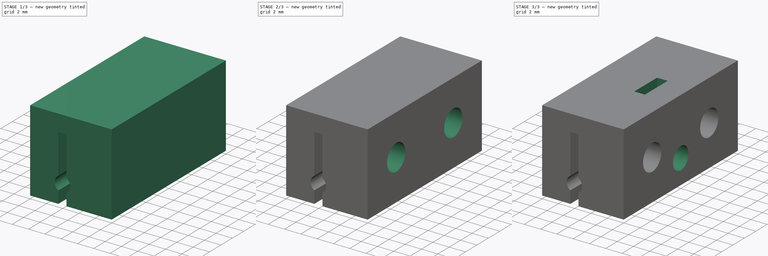
[diagram: build sequence overview — one tinted view per stage of 3, left to right]
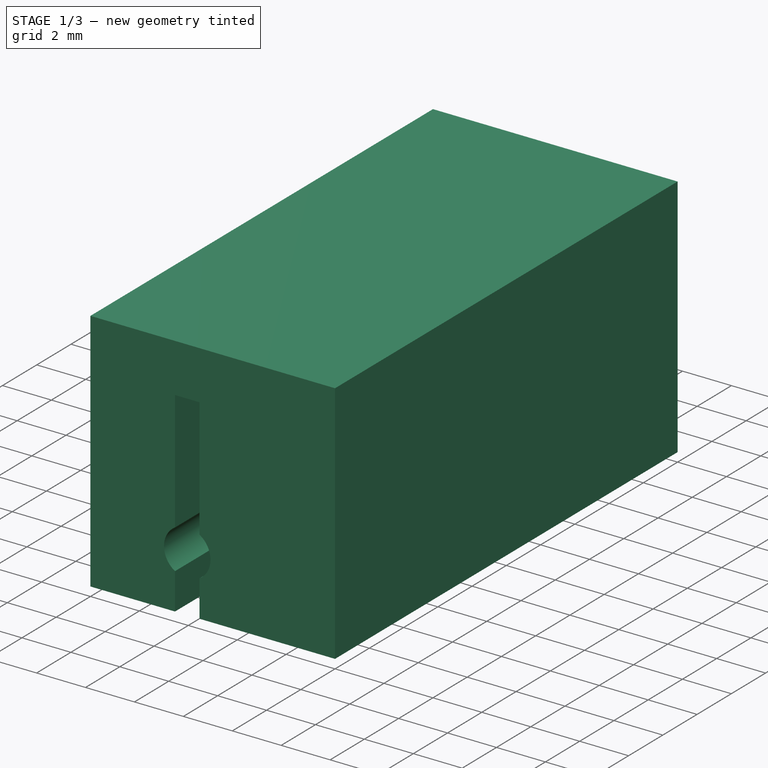
[diagram: stage 1 of 3 — iso view after this stage's code; geometry added in this stage tinted green]
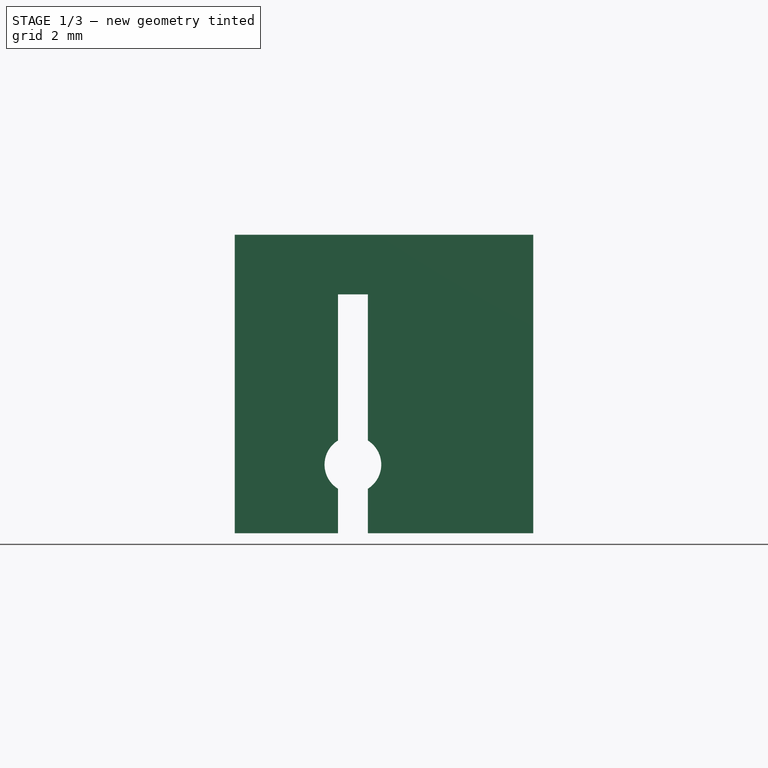
[diagram: stage 1 of 3 — front view after this stage's code; geometry added in this stage tinted green]
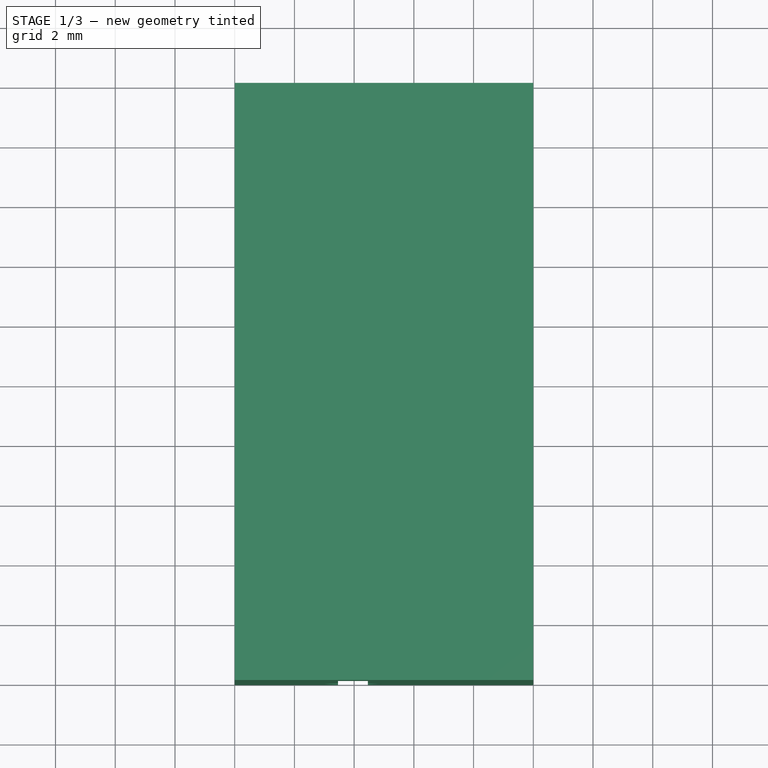
[diagram: stage 1 of 3 — top view after this stage's code; geometry added in this stage tinted green]
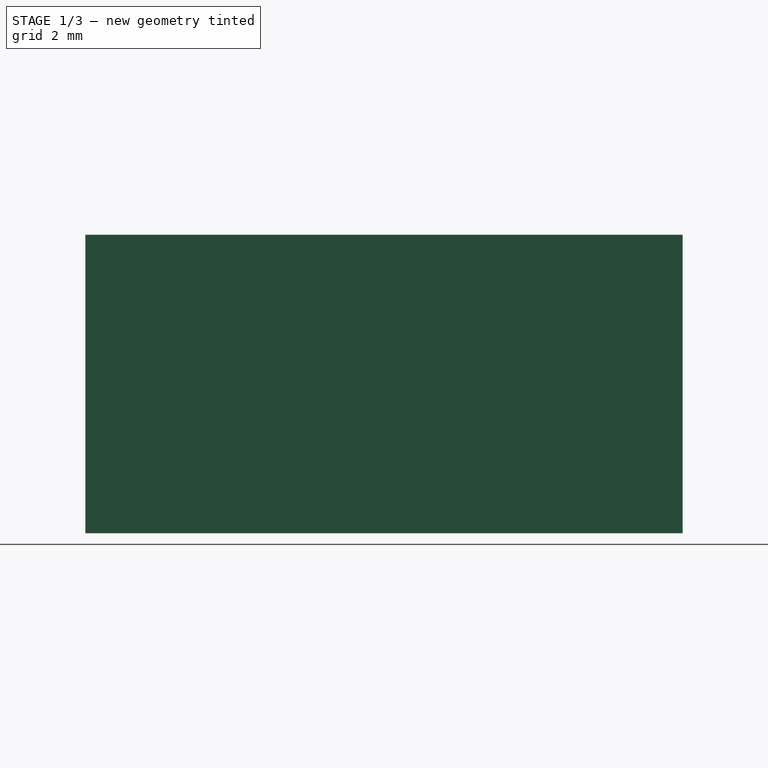
[diagram: stage 1 of 3 — right view after this stage's code; geometry added in this stage tinted green]
FCSTD DOCUMENT  (FreeCAD 0.16R6706 (Git))
Label: Cable Clamp
License: All rights reserved
LicenseURL: http://en.wikipedia.org/wiki/All_rights_reserved
objects: Sketcher::SketchObject×5, PartDesign::Pocket×5, Part::Box×1
note: 16 computed .brp shape members not serialized (recipe doc carries the construction recipe); baked Part::Feature solids carry a one-line shape summary decoded from their .brp

FEATURE [Part::Box] Box  label="Cube"
  Height = 10
  Length = 10
  Width = 20
FEATURE [Sketcher::SketchObject] Sketch
  Placement = pos=(0,0,0) rot=(1,0,0;1.5708rad)
  Support = -> Box [Face3]
  expr: Constraints[23] = 1.9 / 2
  sketch-geometry (10):
    g0: LineSegment StartX=3.4583 StartY=0 StartZ=0 EndX=3.4583 EndY=1.49223 EndZ=0
    g1: LineSegment StartX=3.4583 StartY=3.10777 StartZ=0 EndX=3.4583 EndY=8 EndZ=0
    g2: LineSegment StartX=3.4583 StartY=8 StartZ=0 EndX=4.45829 EndY=8 EndZ=0
    g3: LineSegment StartX=4.45829 StartY=8 StartZ=0 EndX=4.45829 EndY=3.10777 EndZ=0
    g4: LineSegment StartX=4.45829 StartY=1.49223 StartZ=0 EndX=4.45829 EndY=0 EndZ=0
    g5: ArcOfCircle CenterX=3.9583 CenterY=2.3 CenterZ=0 NormalX=0 NormalY=0 NormalZ=1 Radius=0.95 StartAngle=2.12506 EndAngle=4.15813
    g6: ArcOfCircle CenterX=3.9583 CenterY=2.3 CenterZ=0 NormalX=0 NormalY=0 NormalZ=1 Radius=0.95 StartAngle=5.26665 EndAngle=7.29972
    g7: LineSegment [constr] StartX=3.4583 StartY=3.10777 StartZ=0 EndX=3.4583 EndY=1.49223 EndZ=0
    g8: LineSegment [constr] StartX=4.45829 StartY=3.10777 StartZ=0 EndX=4.45829 EndY=1.49223 EndZ=0
    g9: LineSegment StartX=3.4583 StartY=0 StartZ=0 EndX=4.45829 EndY=0 EndZ=0
  constraints (28):
    c: PointOnObject(g0,g-1)
    c: Vertical(g0)
    c: Vertical(g1)
    c: Coincident(g2,g1)
    c: Horizontal(g2)
    c: Coincident(g3,g2)
    c: PointOnObject(g4,g-1)
    c: Vertical(g4)
    c: Equal(g0,g4)
    c: Vertical(g3)
    c: Coincident(g5,g0)
    c: Coincident(g5,g1)
    c: Coincident(g6,g4)
    c: Coincident(g6,g3)
    c: Equal(g6,g5)
    c: Coincident(g7,g1)
    c: Coincident(g7,g0)
    c: Coincident(g8,g3)
    c: Coincident(g8,g4)
    c: Vertical(g8)
    c: Vertical(g7)
    c: DistanceX(g2,g2) = 1
    c: Coincident(g6,g5)
    c: Radius(g6) = 0.95
    c: Coincident(g9,g0)
    c: Coincident(g9,g4)
    c: DistanceY(g-1,g1) = 8
    c: DistanceY(g4,g5) = 2.3
FEATURE [PartDesign::Pocket] Pocket
  Length = 5
  Sketch = -> Sketch
  Type = 1
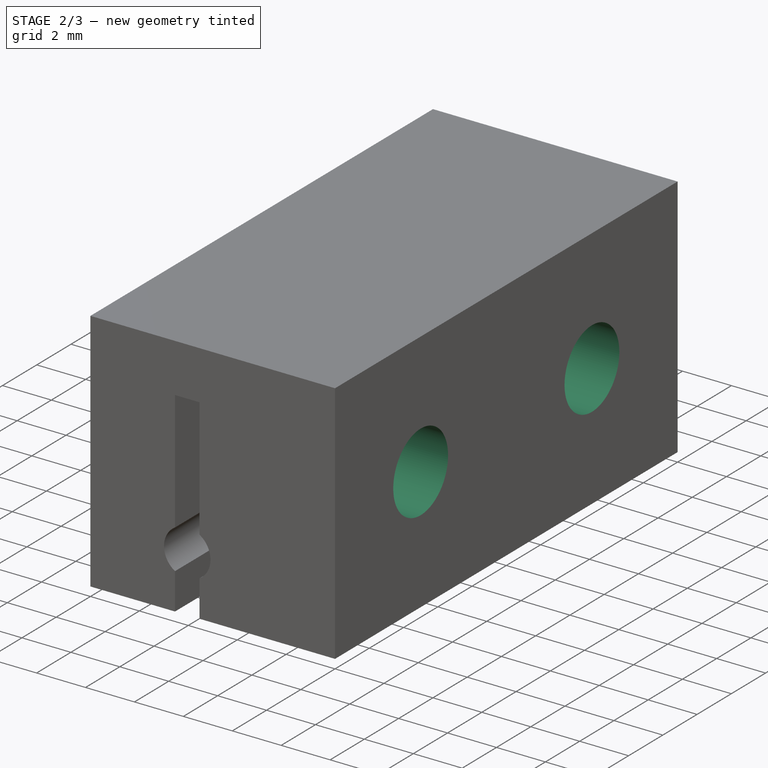
[diagram: stage 2 of 3 — iso view after this stage's code; geometry added in this stage tinted green]
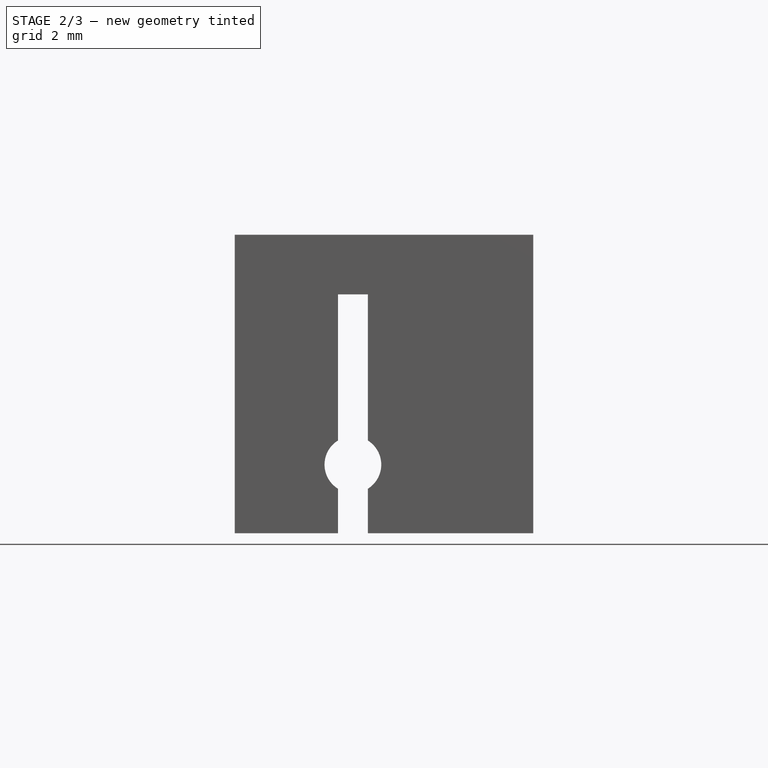
[diagram: stage 2 of 3 — front view after this stage's code; geometry added in this stage tinted green]
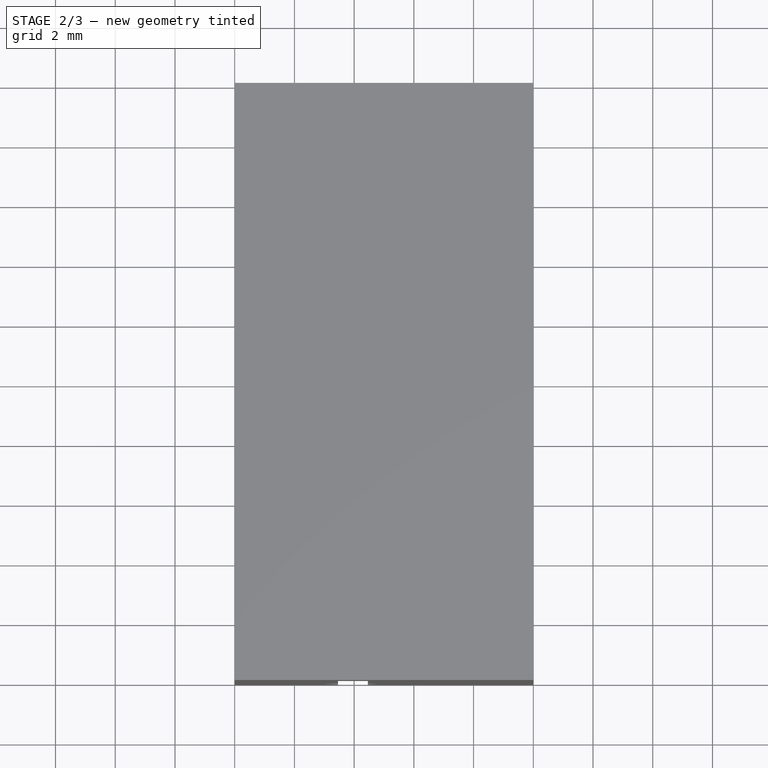
[diagram: stage 2 of 3 — top view after this stage's code; geometry added in this stage tinted green]
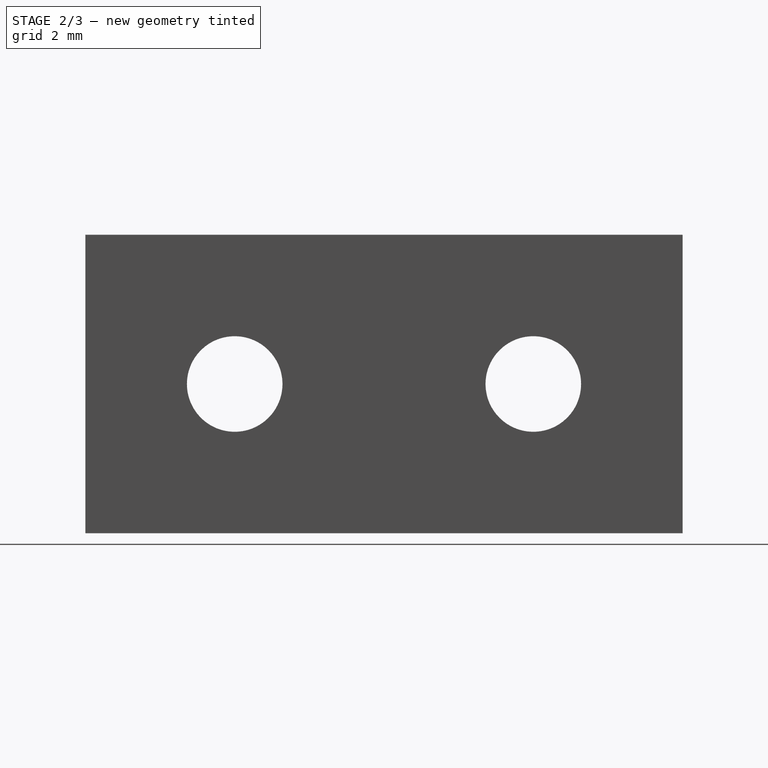
[diagram: stage 2 of 3 — right view after this stage's code; geometry added in this stage tinted green]
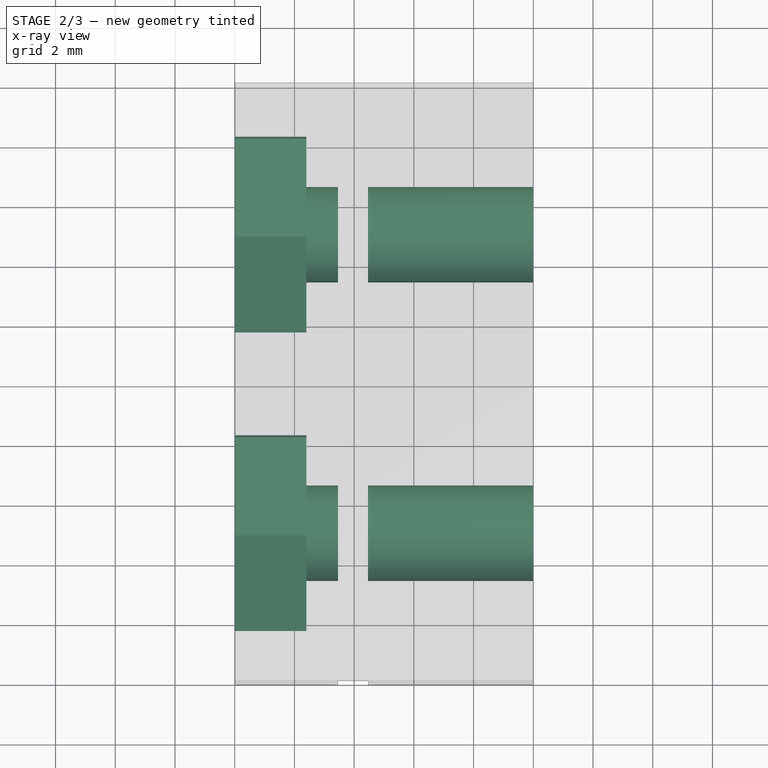
[diagram: stage 2 of 3 — x-ray composite at the top view; earlier geometry ghosted, this stage's added geometry solid]
FEATURE [Sketcher::SketchObject] Sketch001
  Placement = pos=(0,0,0) rot=(0.57735,-0.57735,-0.57735;2.0944rad)
  Support = -> Pocket [Face1]
  sketch-geometry (14):
    g0: LineSegment StartX=-8.25 StartY=6.87639 StartZ=0 EndX=-8.25 EndY=3.12361 EndZ=0
    g1: LineSegment StartX=-8.25 StartY=3.12361 StartZ=0 EndX=-5 EndY=1.24722 EndZ=0
    g2: LineSegment StartX=-5 StartY=1.24722 StartZ=0 EndX=-1.75 EndY=3.12361 EndZ=0
    g3: LineSegment StartX=-1.75 StartY=3.12361 StartZ=0 EndX=-1.75 EndY=6.87639 EndZ=0
    g4: LineSegment StartX=-1.75 StartY=6.87639 StartZ=0 EndX=-5 EndY=8.75278 EndZ=0
    g5: LineSegment StartX=-5 StartY=8.75278 StartZ=0 EndX=-8.25 EndY=6.87639 EndZ=0
    g6: Circle [constr] CenterX=-5 CenterY=5 CenterZ=0 NormalX=0 NormalY=0 NormalZ=1 Radius=3.75278
    g7: LineSegment StartX=-18.25 StartY=6.87639 StartZ=0 EndX=-18.25 EndY=3.12361 EndZ=0
    g8: LineSegment StartX=-18.25 StartY=3.12361 StartZ=0 EndX=-15 EndY=1.24722 EndZ=0
    g9: LineSegment StartX=-15 StartY=1.24722 StartZ=0 EndX=-11.75 EndY=3.12361 EndZ=0
    g10: LineSegment StartX=-11.75 StartY=3.12361 StartZ=0 EndX=-11.75 EndY=6.87639 EndZ=0
    g11: LineSegment StartX=-11.75 StartY=6.87639 StartZ=0 EndX=-15 EndY=8.75278 EndZ=0
    g12: LineSegment StartX=-15 StartY=8.75278 StartZ=0 EndX=-18.25 EndY=6.87639 EndZ=0
    g13: Circle [constr] CenterX=-15 CenterY=5 CenterZ=0 NormalX=0 NormalY=0 NormalZ=1 Radius=3.75278
  constraints (34):
    c: Coincident(g0,g1)
    c: Coincident(g1,g2)
    c: Coincident(g2,g3)
    c: Coincident(g3,g4)
    c: Coincident(g4,g5)
    c: Coincident(g5,g0)
    c: Equal(g0, g1-g5) x5
    c: PointOnObject(g0,g6)
    c: PointOnObject(g1,g6)
    c: PointOnObject(g2,g6)
    c: PointOnObject(g3,g6)
    c: PointOnObject(g4,g6)
    c: PointOnObject(g5,g6)
    c: Coincident(g7,g8)
    c: Coincident(g8,g9)
    c: Coincident(g9,g10)
    c: Coincident(g10,g11)
    c: Coincident(g11,g12)
    c: Coincident(g12,g7)
    c: Equal(g7, g8-g12) x5
    c: PointOnObject(g7,g13)
    c: PointOnObject(g8,g13)
    c: PointOnObject(g9,g13)
    c: PointOnObject(g10,g13)
    c: PointOnObject(g11,g13)
    c: PointOnObject(g12,g13)
    c: Vertical(g7)
    c: Vertical(g0)
    c: Equal(g6,g13)
    c: DistanceX(g0,g3) = 6.5
    c: DistanceY(g-1,g6) = 5
    c: DistanceY(g-1,g13) = 5
    c: DistanceX(g6,g-1) = 5
    c: DistanceX(g13,g-1) = 15
FEATURE [PartDesign::Pocket] Pocket001
  Length = 2.4
  Sketch = -> Sketch001
  Type = 0
  expr: Length = 2.4
FEATURE [Sketcher::SketchObject] Sketch002
  Placement = pos=(10,0,0) rot=(0.57735,0.57735,0.57735;2.0944rad)
  Support = -> Pocket001 [Face26]
  sketch-geometry (2):
    g0: Circle CenterX=5 CenterY=5 CenterZ=0 NormalX=0 NormalY=0 NormalZ=1 Radius=1.6
    g1: Circle CenterX=15 CenterY=5 CenterZ=0 NormalX=0 NormalY=0 NormalZ=1 Radius=1.6
  constraints (6):
    c: DistanceX(g-1,g0) = 5
    c: DistanceX(g-1,g1) = 15
    c: DistanceY(g-1,g0) = 5
    c: DistanceY(g-1,g1) = 5
    c: Equal(g1,g0)
    c: Radius(g1) = 1.6
FEATURE [PartDesign::Pocket] Pocket002
  Length = 5
  Sketch = -> Sketch002
  Type = 1
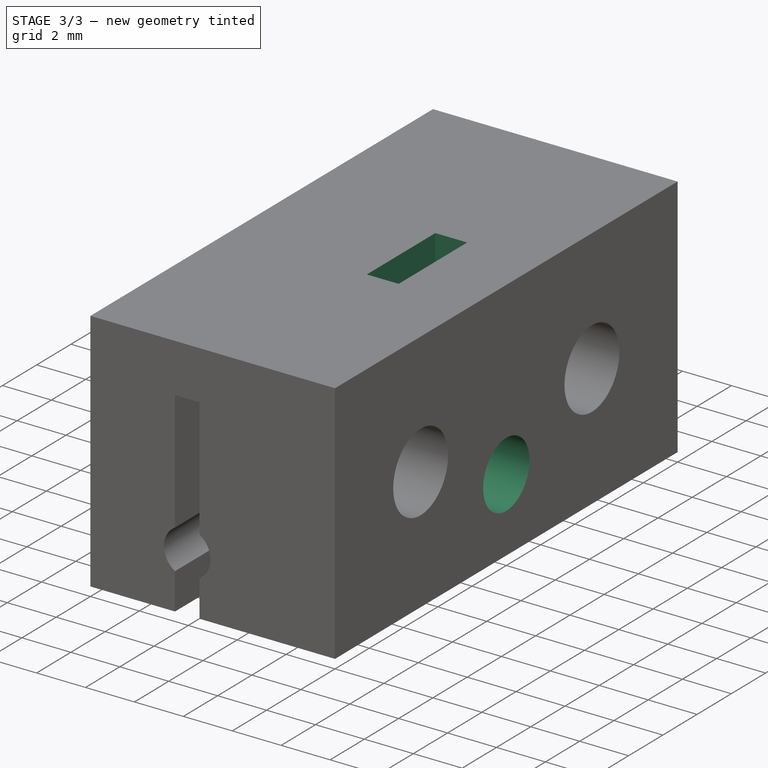
[diagram: stage 3 of 3 — iso view after this stage's code; geometry added in this stage tinted green]
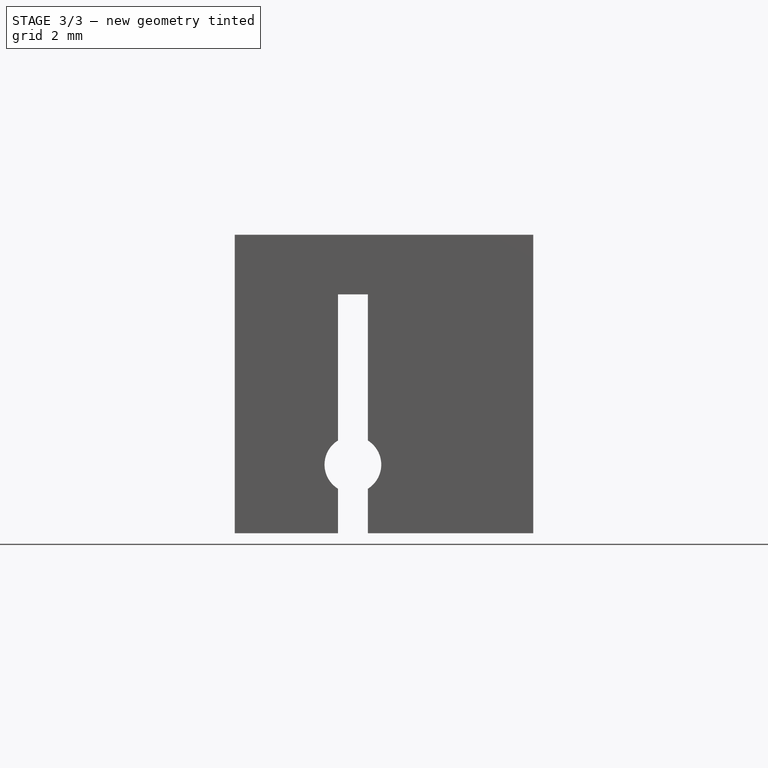
[diagram: stage 3 of 3 — front view after this stage's code; geometry added in this stage tinted green]
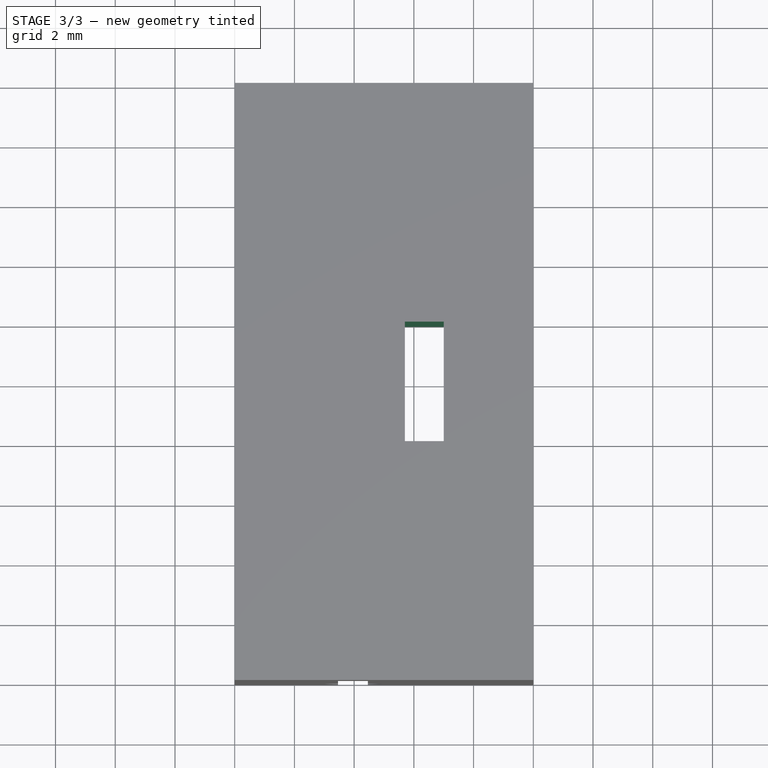
[diagram: stage 3 of 3 — top view after this stage's code; geometry added in this stage tinted green]
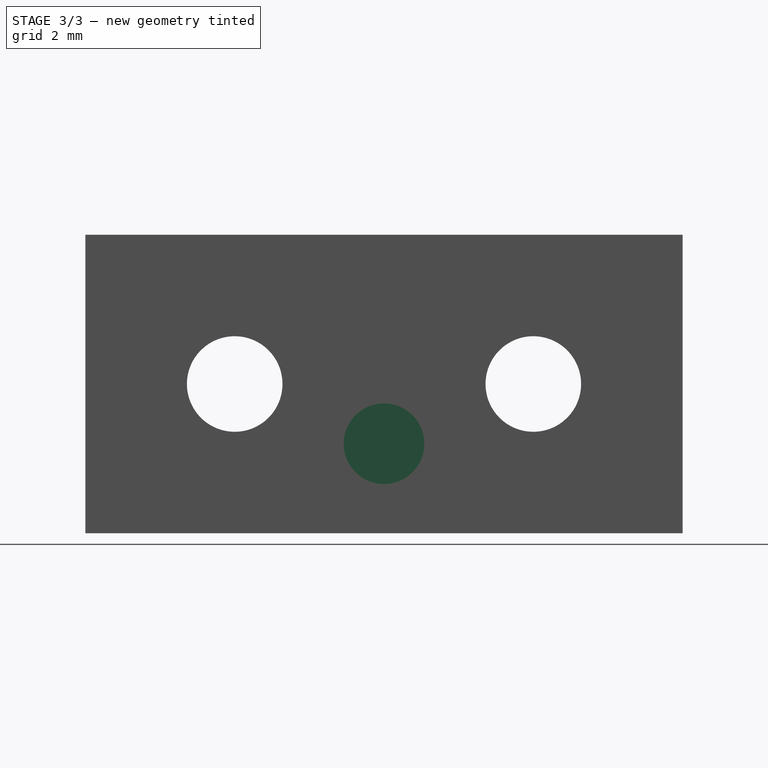
[diagram: stage 3 of 3 — right view after this stage's code; geometry added in this stage tinted green]
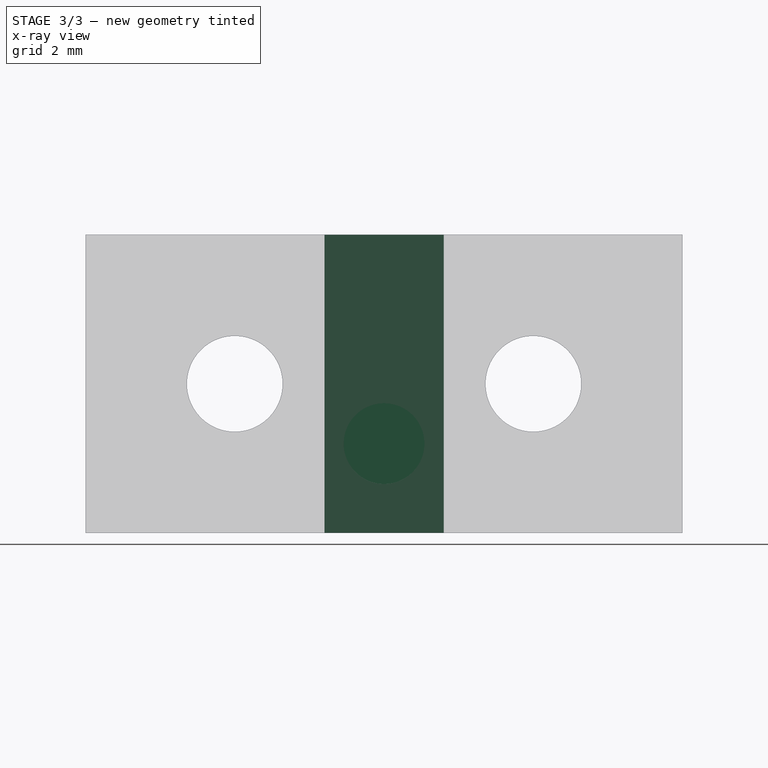
[diagram: stage 3 of 3 — x-ray composite at the right view; earlier geometry ghosted, this stage's added geometry solid]
FEATURE [Sketcher::SketchObject] Sketch003
  ExternalGeometry = -> [Pocket002]
  Placement = pos=(0,0,10) rot=(0,0,1;0rad)
  Support = -> Pocket002 [Face3]
  sketch-geometry (4):
    g0: LineSegment StartX=5.7 StartY=12 StartZ=0 EndX=7 EndY=12 EndZ=0
    g1: LineSegment StartX=7 StartY=12 StartZ=0 EndX=7 EndY=8 EndZ=0
    g2: LineSegment StartX=7 StartY=8 StartZ=0 EndX=5.7 EndY=8 EndZ=0
    g3: LineSegment StartX=5.7 StartY=8 StartZ=0 EndX=5.7 EndY=12 EndZ=0
  constraints (12):
    c: Coincident(g0,g1)
    c: Coincident(g1,g2)
    c: Coincident(g2,g3)
    c: Coincident(g3,g0)
    c: Horizontal(g0)
    c: Horizontal(g2)
    c: Vertical(g1)
    c: Vertical(g3)
    c: DistanceX(g0,g0) = 1.3
    c: DistanceY(g1,g1) = 4
    c: DistanceY(g-3,g1) = 8
    c: DistanceX(g1,g-3) = 3
FEATURE [PartDesign::Pocket] Pocket003
  Length = 5
  Sketch = -> Sketch003
  Type = 1
FEATURE [Sketcher::SketchObject] Sketch004
  Placement = pos=(10,0,0) rot=(0.57735,0.57735,0.57735;2.0944rad)
  Support = -> Pocket003 [Face26]
  expr: Constraints[0] = 2.7 / 2
  sketch-geometry (1):
    g0: Circle CenterX=10 CenterY=3 CenterZ=0 NormalX=0 NormalY=0 NormalZ=1 Radius=1.35
  constraints (3):
    c: Radius(g0) = 1.35
    c: DistanceX(g-1,g0) = 10
    c: DistanceY(g-1,g0) = 3
FEATURE [PartDesign::Pocket] Pocket004
  Length = 3
  Sketch = -> Sketch004
  Type = 0
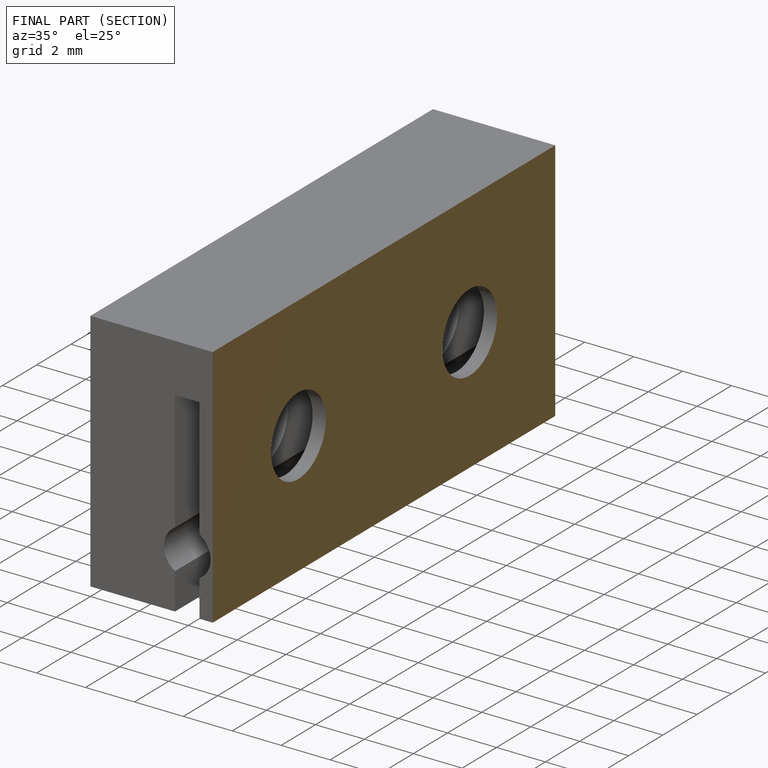
[diagram: finished part — half-section view (interior)]
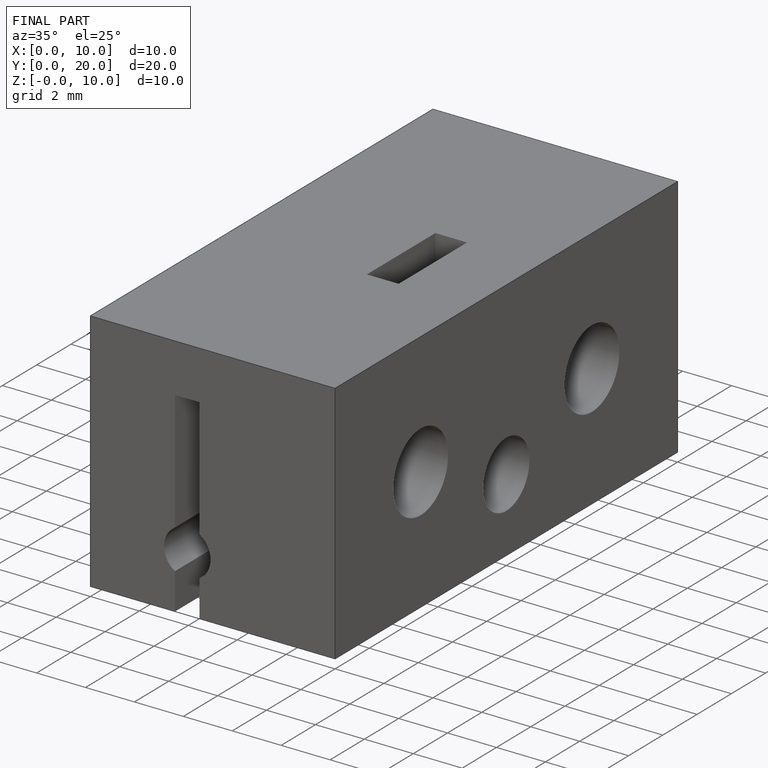
[diagram: finished part — iso view with bounding-box wireframe]
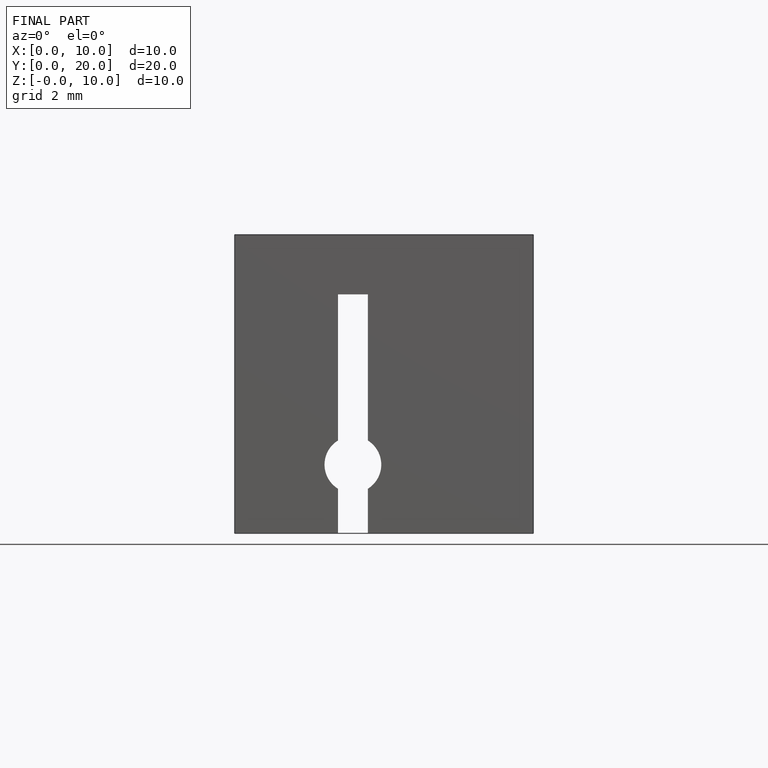
[diagram: finished part — front view with bounding-box wireframe]
